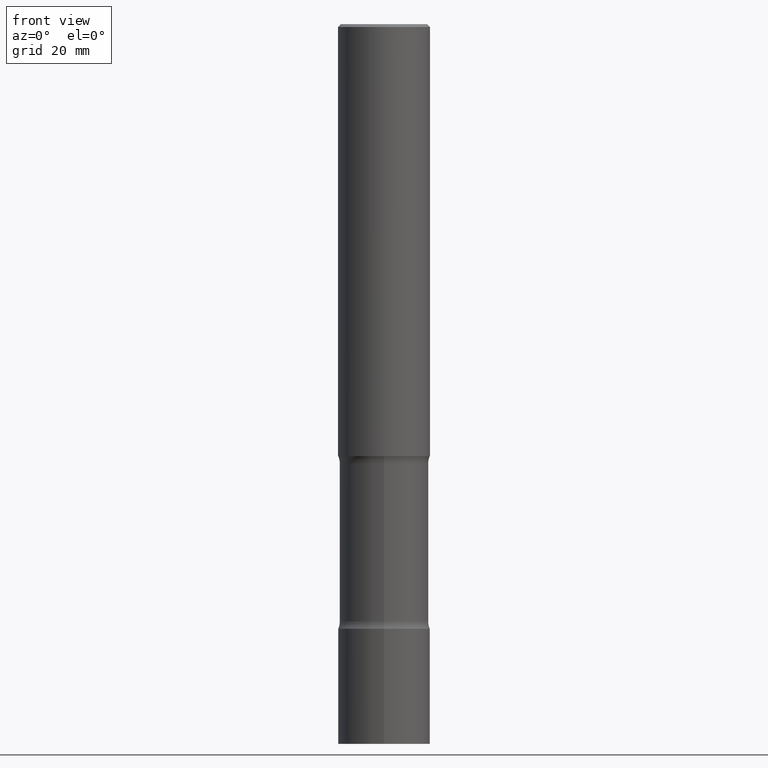
[diagram: clean part render]
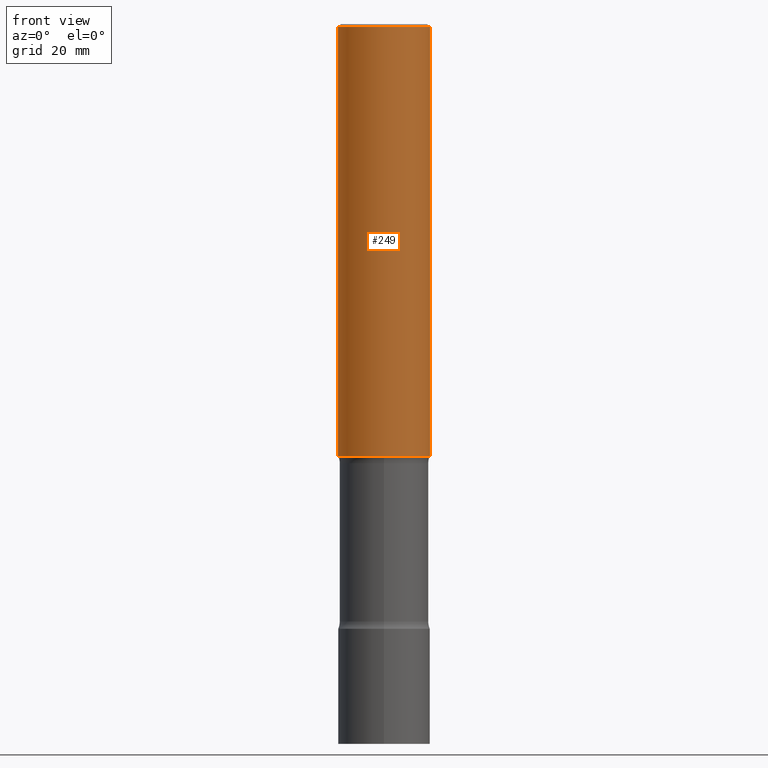
[diagram: same view with one face highlighted and labeled with its STEP entity id]
A machine part, front view. The second image highlights one B-rep face of the part: STEP entity #249.
In plain terms, the highlighted cylindrical surface (partial cylindrical patch) has radius 7.9997 mm, axis along (-0, 0, 1).
Its self-contained STEP definition (entity closure, byte-faithful):
#15 = ORIENTED_EDGE ( 'NONE', *, *, #54, .F. ) ;
#54 = EDGE_CURVE ( 'NONE', #492, #134, #218, .T. ) ;
#63 = DIRECTION ( 'NONE',  ( 1.000000000000000000, -6.982962677686269866E-15, 0.000000000000000000 ) ) ;
#79 = LINE ( 'NONE', #425, #102 ) ;
#82 = CARTESIAN_POINT ( 'NONE',  ( 0.3149499999999997302, -2.230543471175005083E-15, -0.02000000000000000042 ) ) ;
#83 = EDGE_CURVE ( 'NONE', #234, #134, #116, .T. ) ;
#85 = DIRECTION ( 'NONE',  ( -2.445468806185136877E-29, 3.491481338843145188E-15, 1.000000000000000000 ) ) ;
#96 = AXIS2_PLACEMENT_3D ( 'NONE', #322, #478, #354 ) ;
#102 = VECTOR ( 'NONE', #85, 39.37007874015748143 ) ;
#106 = EDGE_CURVE ( 'NONE', #332, #492, #79, .T. ) ;
#116 = LINE ( 'NONE', #342, #344 ) ;
#134 = VERTEX_POINT ( 'NONE', #82 ) ;
#169 = FACE_OUTER_BOUND ( 'NONE', #202, .T. ) ;
#195 = AXIS2_PLACEMENT_3D ( 'NONE', #349, #201, #345 ) ;
#201 = DIRECTION ( 'NONE',  ( -2.445468806185136597E-29, 3.491481338843145583E-15, 1.000000000000000000 ) ) ;
#202 = EDGE_LOOP ( 'NONE', ( #270, #434, #363, #15 ) ) ;
#203 = CYLINDRICAL_SURFACE ( 'NONE', #96, 0.3149499999999998967 ) ;
#218 = CIRCLE ( 'NONE', #195, 0.3149499999999997302 ) ;
#234 = VERTEX_POINT ( 'NONE', #362 ) ;
#249 = ADVANCED_FACE ( 'NONE', ( #169 ), #203, .T. ) ;
#260 = CARTESIAN_POINT ( 'NONE',  ( -0.3149499999999997302, 2.129454468560424995E-15, -0.02000000000000000042 ) ) ;
#270 = ORIENTED_EDGE ( 'NONE', *, *, #106, .F. ) ;
#283 = CARTESIAN_POINT ( 'NONE',  ( -0.3149500000000000077, -2.951883515780012562E-15, -2.952799999999998981 ) ) ;
#322 = CARTESIAN_POINT ( 'NONE',  ( 0.000000000000000000, 0.000000000000000000, 0.000000000000000000 ) ) ;
#328 = AXIS2_PLACEMENT_3D ( 'NONE', #459, #376, #63 ) ;
#332 = VERTEX_POINT ( 'NONE', #283 ) ;
#342 = CARTESIAN_POINT ( 'NONE',  ( 0.3149499999999998967, -2.199284095337288688E-15, 1.535751875536929289E-29 ) ) ;
#344 = VECTOR ( 'NONE', #433, 39.37007874015748143 ) ;
#345 = DIRECTION ( 'NONE',  ( 1.000000000000000000, -6.982962677686266711E-15, 0.000000000000000000 ) ) ;
#349 = CARTESIAN_POINT ( 'NONE',  ( 4.890937612370273159E-31, -6.982962677686291609E-17, -0.02000000000000000042 ) ) ;
#354 = DIRECTION ( 'NONE',  ( 1.000000000000000000, -6.982962677686265922E-15, 4.876176775795935232E-29 ) ) ;
#362 = CARTESIAN_POINT ( 'NONE',  ( 0.3149500000000000077, -1.250893019267332682E-14, -2.952799999999998981 ) ) ;
#363 = ORIENTED_EDGE ( 'NONE', *, *, #83, .T. ) ;
#376 = DIRECTION ( 'NONE',  ( -2.445468806185136597E-29, 3.491481338843145583E-15, 1.000000000000000000 ) ) ;
#425 = CARTESIAN_POINT ( 'NONE',  ( -0.3149499999999998967, 2.237854346276434801E-15, -1.549218606675782116E-29 ) ) ;
#433 = DIRECTION ( 'NONE',  ( -2.445468806185136877E-29, 3.491481338843145188E-15, 1.000000000000000000 ) ) ;
#434 = ORIENTED_EDGE ( 'NONE', *, *, #474, .T. ) ;
#447 = CIRCLE ( 'NONE', #328, 0.3149500000000000077 ) ;
#459 = CARTESIAN_POINT ( 'NONE',  ( 7.220980290903469061E-29, -1.030964609733603695E-14, -2.952799999999998981 ) ) ;
#474 = EDGE_CURVE ( 'NONE', #332, #234, #447, .T. ) ;
#478 = DIRECTION ( 'NONE',  ( -2.445468806185136597E-29, 3.491481338843145583E-15, 1.000000000000000000 ) ) ;
#492 = VERTEX_POINT ( 'NONE', #260 ) ;